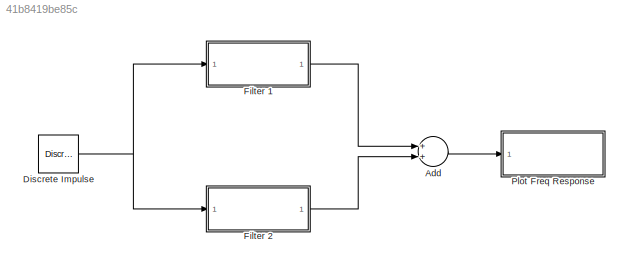
MODEL slx_41b8419be85c
KIND model
CONFIG AbsTol = auto
CONFIG EnableMultiTasking = off
CONFIG FixedStep = auto
CONFIG MaxStep = auto
CONFIG MinStep = auto
CONFIG RelTol = 1e-3
CONFIG SampleTimeConstraint = Unconstrained
CONFIG Solver = VariableStepAuto
CONFIG SolverName = VariableStepAuto
CONFIG StartTime = 0.0
CONFIG StopTime = 0.01
BLOCK [Sum] Add
  InputSameDT = off
  OutDataTypeStr = Inherit: Inherit via internal rule
  Ports = [2, 1]
  SaturateOnIntegerOverflow = off
BLOCK [Reference] Discrete Impulse  REF=dspsrcs4/Discrete 
Impulse
  Ports = [0, 1]
  SourceBlock = dspsrcs4/Discrete \nImpulse
  SourceProductBaseCode = DS
  SourceProductName = DSP System Toolbox
  SourceType = Discrete Impulse
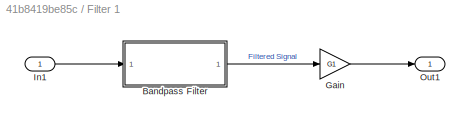
BLOCK [SubSystem] Filter 1
  Ports = [1, 1]
  RequestExecContextInheritance = off
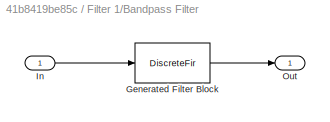
BLOCK [SubSystem] Filter 1/Bandpass Filter
  CopyFcn = fdesignblkfcn(gcbh, {'CopyFcn'});
  DialogController = fdesignblkfcn
  InitFcn = fdesignblkfcn(gcbh, {'InitFcn'});
  Ports = [1, 1]
  RequestExecContextInheritance = off
  UserDataPersistent = on
BLOCK [DiscreteFir] Filter 1/Bandpass Filter/Generated Filter Block
  Coefficients = [-6.22134684656821929e-07 -1.13803127657343925e-05 -6.88386174447548914e-05 -0.000253967523622427498 -0.000674852927024836759 -0.00138321611437446285 -0.00224615205437689834 -0.00287799561946159958 -0.00276478288326855413 -0.00160169913189871986 0.000353414578601418759 0.00224131512232661782 0.00305797231453537252 0.0023772015982347558 0.000770280234616252564 -0.000529027839585679898 -0.0005634685...<+10318ch>
  InputPortMap = u0
  InputProcessing = Columns as channels (frame based)
  OutputPortMap = o0
  Ports = [1, 1]
  Tag = BlockMethodSubSystem
BLOCK [Inport] Filter 1/Bandpass Filter/In
  IconDisplay = Port number
BLOCK [Outport] Filter 1/Bandpass Filter/Out
  IconDisplay = Port number
BLOCK [Gain] Filter 1/Gain
  Gain = G1
  OutDataTypeStr = Inherit: Inherit via internal rule
  ParamDataTypeStr = Inherit: Inherit via internal rule
  SaturateOnIntegerOverflow = off
BLOCK [Inport] Filter 1/In1
  IconDisplay = Port number
BLOCK [Outport] Filter 1/Out1
  IconDisplay = Port number
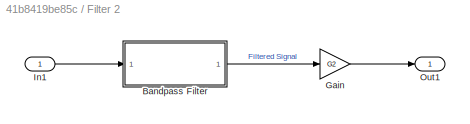
BLOCK [SubSystem] Filter 2
  Ports = [1, 1]
  RequestExecContextInheritance = off
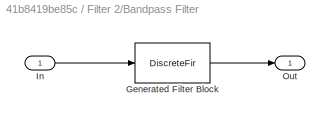
BLOCK [SubSystem] Filter 2/Bandpass Filter
  CopyFcn = fdesignblkfcn(gcbh, {'CopyFcn'});
  DialogController = fdesignblkfcn
  InitFcn = fdesignblkfcn(gcbh, {'InitFcn'});
  Ports = [1, 1]
  RequestExecContextInheritance = off
  UserDataPersistent = on
BLOCK [DiscreteFir] Filter 2/Bandpass Filter/Generated Filter Block
  Coefficients = [-3.39460949165395717e-06 1.3450936839256965e-05 -3.47685045710267847e-06 -6.23673651333002713e-05 9.42736662656093038e-05 8.68149844918313454e-05 -0.000321492861862216243 7.42688799067623215e-05 0.0005497663535907638 -0.000427751039768807257 -0.000648715942068820426 0.000801269067634722654 0.000814864650021221958 -0.001419893419875523 -0.00095720491948660634 0.00267918863363881404 6.6986464735253...<+10410ch>
  InputPortMap = u0
  InputProcessing = Columns as channels (frame based)
  OutputPortMap = o0
  Ports = [1, 1]
  Tag = BlockMethodSubSystem
BLOCK [Inport] Filter 2/Bandpass Filter/In
  IconDisplay = Port number
BLOCK [Outport] Filter 2/Bandpass Filter/Out
  IconDisplay = Port number
BLOCK [Gain] Filter 2/Gain
  Gain = G2
  OutDataTypeStr = Inherit: Inherit via internal rule
  ParamDataTypeStr = Inherit: Inherit via internal rule
  SaturateOnIntegerOverflow = off
BLOCK [Inport] Filter 2/In1
  IconDisplay = Port number
BLOCK [Outport] Filter 2/Out1
  IconDisplay = Port number
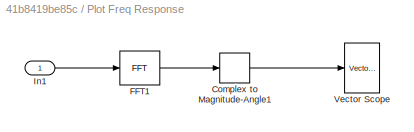
BLOCK [SubSystem] Plot Freq Response
  Ports = [1]
  RequestExecContextInheritance = off
BLOCK [ComplexToMagnitudeAngle] Plot Freq Response/Complex to Magnitude-Angle1
  Output = Magnitude
  Ports = [1, 1]
BLOCK [Reference] Plot Freq Response/FFT1  REF=dspxfrm3/FFT
  Ports = [1, 1]
  SourceBlock = dspxfrm3/FFT
  SourceProductBaseCode = DS
  SourceProductName = DSP System Toolbox
  SourceType = FFT
BLOCK [Inport] Plot Freq Response/In1
  IconDisplay = Port number
BLOCK [Reference] Plot Freq Response/Vector Scope  REF=dspobslib/Vector
Scope
  Ports = [1]
  SourceBlock = dspobslib/Vector\nScope
  SourceProductBaseCode = DS
  SourceProductName = DSP System Toolbox
  SourceType = Vector Scope
LINE Add:1 -> Plot Freq Response:1
NET Discrete Impulse:1 -> Filter 1:1, Filter 2:1
LINE Filter 1/Bandpass Filter:1 -> Filter 1/Gain:1
LINE Filter 1/Gain:1 -> Filter 1/Out1:1
LINE Filter 1/In1:1 -> Filter 1/Bandpass Filter:1
LINE Filter 1:1 -> Add:1
LINE Filter 2/Bandpass Filter:1 -> Filter 2/Gain:1
LINE Filter 2/Gain:1 -> Filter 2/Out1:1
LINE Filter 2/In1:1 -> Filter 2/Bandpass Filter:1
LINE Filter 2:1 -> Add:2
LINE Plot Freq Response/Complex to Magnitude-Angle1:1 -> Plot Freq Response/Vector Scope:1
LINE Plot Freq Response/FFT1:1 -> Plot Freq Response/Complex to Magnitude-Angle1:1
LINE Plot Freq Response/In1:1 -> Plot Freq Response/FFT1:1
note: NET lines group one-source signal fan-out (src -> all destinations, sorted); 1:1 wires keep LINE
